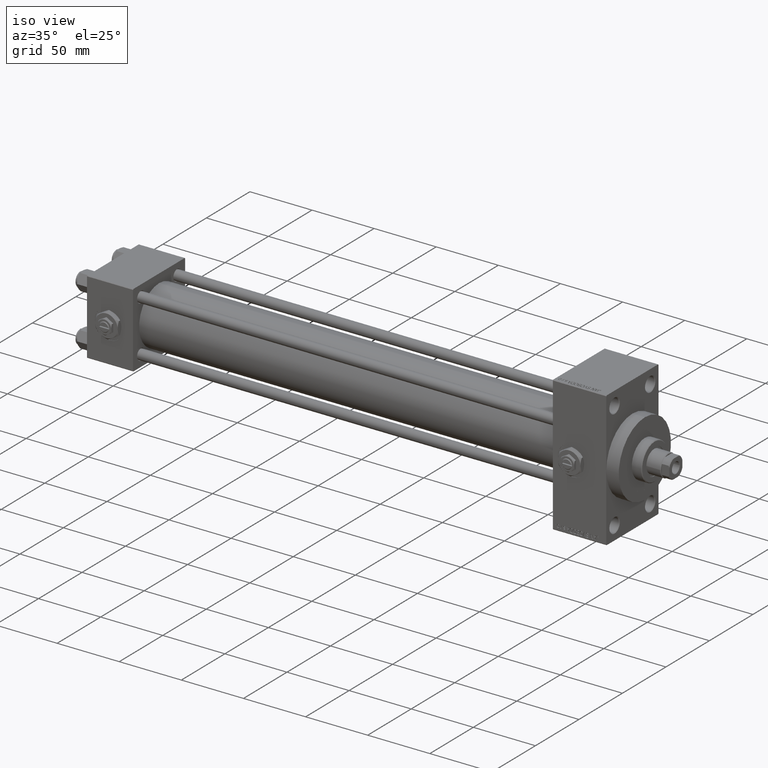
[diagram: clean part render]
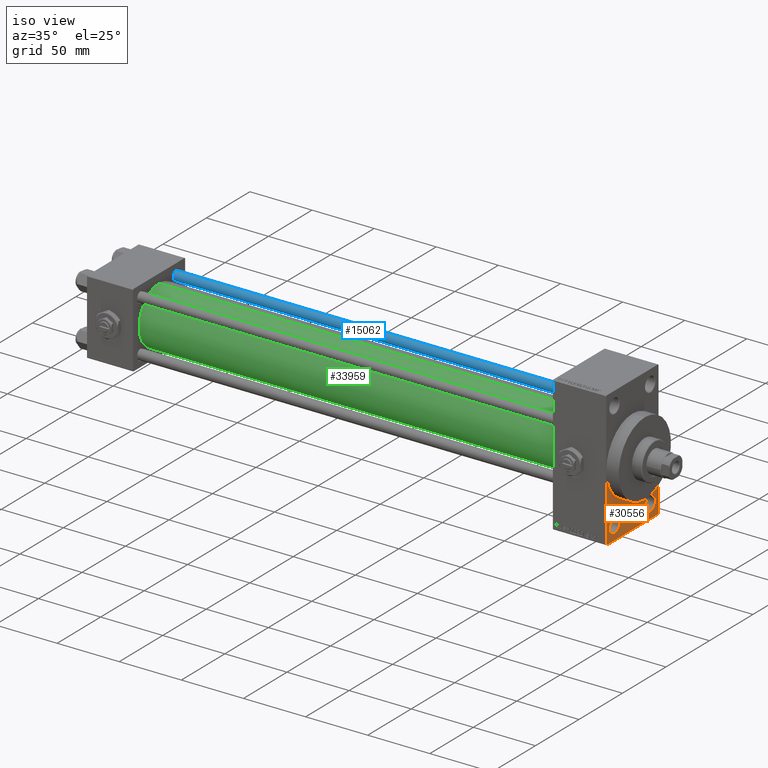
[diagram: same view with three faces highlighted in distinct colors, each labeled with its STEP entity id]
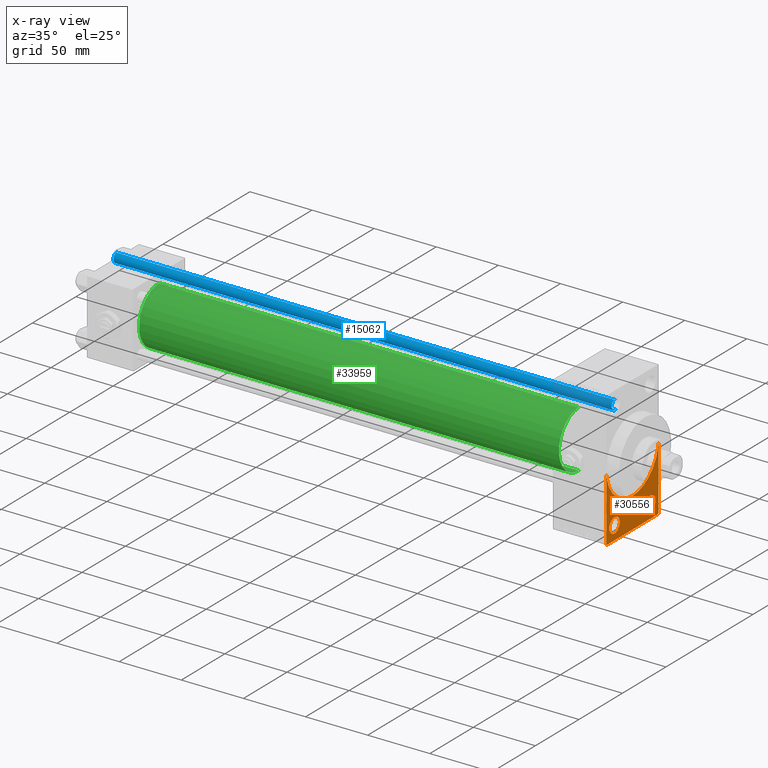
[diagram: x-ray of the same camera — body ghosted, the three highlighted faces saturated]
A machine part, iso view with three faces highlighted in distinct colors.
The next image is the same camera in x-ray (body ghosted, the three faces saturated) — at least one of them is partly hidden behind the body in this view.
Their STEP definitions:

[orange] entity #30556 — the highlighted planar face has unit normal (-1, 0, 0).
#319 = DIRECTION ( 'NONE',  ( 0.000000000000000000, 0.000000000000000000, -1.000000000000000000 ) ) ;
#781 = VECTOR ( 'NONE', #11737, 1000.000000000000114 ) ;
#1031 = EDGE_CURVE ( 'NONE', #13218, #46867, #19214, .T. ) ;
#1283 = DIRECTION ( 'NONE',  ( 0.000000000000000000, 0.000000000000000000, 1.000000000000000000 ) ) ;
#1867 = CARTESIAN_POINT ( 'NONE',  ( 418.0000000000000000, 20.50000000000000000, -43.50000000000000000 ) ) ;
#1924 = AXIS2_PLACEMENT_3D ( 'NONE', #17992, #48398, #14262 ) ;
#1964 = LINE ( 'NONE', #39072, #14049 ) ;
#2336 = DIRECTION ( 'NONE',  ( -1.000000000000000000, 0.000000000000000000, -0.000000000000000000 ) ) ;
#2926 = ORIENTED_EDGE ( 'NONE', *, *, #39020, .F. ) ;
#3690 = ORIENTED_EDGE ( 'NONE', *, *, #1031, .T. ) ;
#4043 = LINE ( 'NONE', #15504, #5162 ) ;
#4230 = VERTEX_POINT ( 'NONE', #45585 ) ;
#5162 = VECTOR ( 'NONE', #42140, 1000.000000000000000 ) ;
#5878 = VERTEX_POINT ( 'NONE', #7353 ) ;
#6168 = EDGE_LOOP ( 'NONE', ( #29302, #26811 ) ) ;
#7306 = VERTEX_POINT ( 'NONE', #46402 ) ;
#7353 = CARTESIAN_POINT ( 'NONE',  ( 418.0000000000000000, -29.49999999999994671, -54.50000000000000000 ) ) ;
#7792 = DIRECTION ( 'NONE',  ( 1.000000000000000000, 0.000000000000000000, 0.000000000000000000 ) ) ;
#7887 = ORIENTED_EDGE ( 'NONE', *, *, #43224, .F. ) ;
#8133 = DIRECTION ( 'NONE',  ( 0.000000000000000000, 0.000000000000000000, 1.000000000000000000 ) ) ;
#8819 = VERTEX_POINT ( 'NONE', #22965 ) ;
#8869 = DIRECTION ( 'NONE',  ( -1.000000000000000000, 0.000000000000000000, -0.000000000000000000 ) ) ;
#10185 = EDGE_CURVE ( 'NONE', #8819, #45784, #44739, .T. ) ;
#11007 = ORIENTED_EDGE ( 'NONE', *, *, #36548, .F. ) ;
#11121 = CARTESIAN_POINT ( 'NONE',  ( 418.0000000000000000, 0.000000000000000000, 0.000000000000000000 ) ) ;
#11737 = DIRECTION ( 'NONE',  ( -0.000000000000000000, 0.7071067811865474617, 0.7071067811865474617 ) ) ;
#12072 = VERTEX_POINT ( 'NONE', #43444 ) ;
#12830 = CARTESIAN_POINT ( 'NONE',  ( 418.0000000000000000, -30.00000000000000000, 0.000000000000000000 ) ) ;
#13218 = VERTEX_POINT ( 'NONE', #36433 ) ;
#14049 = VECTOR ( 'NONE', #24856, 1000.000000000000000 ) ;
#14262 = DIRECTION ( 'NONE',  ( 0.000000000000000000, 0.000000000000000000, -1.000000000000000000 ) ) ;
#15223 = ORIENTED_EDGE ( 'NONE', *, *, #21523, .T. ) ;
#15504 = CARTESIAN_POINT ( 'NONE',  ( 418.0000000000000000, 29.99999999999999645, -54.49999999999999289 ) ) ;
#17028 = EDGE_CURVE ( 'NONE', #12072, #5878, #42671, .T. ) ;
#17047 = DIRECTION ( 'NONE',  ( 0.000000000000000000, 0.000000000000000000, 1.000000000000000000 ) ) ;
#17049 = VERTEX_POINT ( 'NONE', #21461 ) ;
#17450 = CIRCLE ( 'NONE', #41320, 5.999999999999950262 ) ;
#17992 = CARTESIAN_POINT ( 'NONE',  ( 418.0000000000000000, 0.000000000000000000, 0.000000000000000000 ) ) ;
#19127 = CIRCLE ( 'NONE', #31851, 5.999999999999950262 ) ;
#19214 = LINE ( 'NONE', #26433, #781 ) ;
#19277 = AXIS2_PLACEMENT_3D ( 'NONE', #21633, #44558, #41303 ) ;
#19314 = CARTESIAN_POINT ( 'NONE',  ( 418.0000000000000000, 29.99999999999999645, -53.99999999999993605 ) ) ;
#19451 = CIRCLE ( 'NONE', #1924, 30.00000000000000000 ) ;
#19570 = VERTEX_POINT ( 'NONE', #31582 ) ;
#20498 = EDGE_LOOP ( 'NONE', ( #22599, #27604, #11007, #3690, #2926, #34525, #7887 ) ) ;
#20804 = VECTOR ( 'NONE', #33840, 1000.000000000000000 ) ;
#21461 = CARTESIAN_POINT ( 'NONE',  ( 418.0000000000000000, 20.50000000000000000, -49.49999999999995026 ) ) ;
#21523 = EDGE_CURVE ( 'NONE', #17049, #19570, #17450, .T. ) ;
#21633 = CARTESIAN_POINT ( 'NONE',  ( 418.0000000000000000, -20.50000000000000000, -43.50000000000000000 ) ) ;
#22185 = AXIS2_PLACEMENT_3D ( 'NONE', #30944, #7792, #319 ) ;
#22599 = ORIENTED_EDGE ( 'NONE', *, *, #26733, .T. ) ;
#22965 = CARTESIAN_POINT ( 'NONE',  ( 418.0000000000000000, -20.50000000000000000, -37.50000000000004974 ) ) ;
#23683 = VERTEX_POINT ( 'NONE', #12830 ) ;
#23728 = CARTESIAN_POINT ( 'NONE',  ( 418.0000000000000000, -29.49999999999994671, -54.50000000000000000 ) ) ;
#23741 = AXIS2_PLACEMENT_3D ( 'NONE', #24917, #46877, #1283 ) ;
#24856 = DIRECTION ( 'NONE',  ( 0.000000000000000000, 0.000000000000000000, -1.000000000000000000 ) ) ;
#24917 = CARTESIAN_POINT ( 'NONE',  ( 418.0000000000000000, -20.50000000000000000, -43.50000000000000000 ) ) ;
#26044 = DIRECTION ( 'NONE',  ( -1.000000000000000000, 0.000000000000000000, -0.000000000000000000 ) ) ;
#26297 = FACE_BOUND ( 'NONE', #6168, .T. ) ;
#26433 = CARTESIAN_POINT ( 'NONE',  ( 418.0000000000000000, 29.99999999999999645, -53.99999999999993605 ) ) ;
#26516 = AXIS2_PLACEMENT_3D ( 'NONE', #11121, #26044, #33532 ) ;
#26733 = EDGE_CURVE ( 'NONE', #23683, #12072, #41074, .T. ) ;
#26811 = ORIENTED_EDGE ( 'NONE', *, *, #10185, .T. ) ;
#27604 = ORIENTED_EDGE ( 'NONE', *, *, #17028, .T. ) ;
#29302 = ORIENTED_EDGE ( 'NONE', *, *, #42104, .T. ) ;
#29365 = VECTOR ( 'NONE', #38924, 1000.000000000000000 ) ;
#29554 = FACE_OUTER_BOUND ( 'NONE', #20498, .T. ) ;
#30556 = ADVANCED_FACE ( 'NONE', ( #26297, #33269, #29554 ), #45245, .F. ) ;
#30944 = CARTESIAN_POINT ( 'NONE',  ( 418.0000000000000000, 0.000000000000000000, 0.000000000000000000 ) ) ;
#31582 = CARTESIAN_POINT ( 'NONE',  ( 418.0000000000000000, 20.50000000000000000, -37.50000000000004974 ) ) ;
#31787 = CARTESIAN_POINT ( 'NONE',  ( 418.0000000000000000, -20.50000000000000000, -49.49999999999995026 ) ) ;
#31851 = AXIS2_PLACEMENT_3D ( 'NONE', #1867, #2336, #17047 ) ;
#33269 = FACE_BOUND ( 'NONE', #46100, .T. ) ;
#33343 = CARTESIAN_POINT ( 'NONE',  ( 418.0000000000000000, -30.00000000000000000, 54.50000000000000000 ) ) ;
#33532 = DIRECTION ( 'NONE',  ( -0.000000000000000000, 0.000000000000000000, 1.000000000000000000 ) ) ;
#33840 = DIRECTION ( 'NONE',  ( 0.000000000000000000, 0.000000000000000000, -1.000000000000000000 ) ) ;
#34525 = ORIENTED_EDGE ( 'NONE', *, *, #35491, .F. ) ;
#35491 = EDGE_CURVE ( 'NONE', #4230, #7306, #19451, .T. ) ;
#36433 = CARTESIAN_POINT ( 'NONE',  ( 418.0000000000000000, 29.49999999999993960, -54.49999999999999289 ) ) ;
#36548 = EDGE_CURVE ( 'NONE', #13218, #5878, #4043, .T. ) ;
#37292 = CIRCLE ( 'NONE', #22185, 30.00000000000000000 ) ;
#38924 = DIRECTION ( 'NONE',  ( 0.000000000000000000, 0.7071067811865352493, -0.7071067811865597852 ) ) ;
#39020 = EDGE_CURVE ( 'NONE', #7306, #46867, #1964, .T. ) ;
#39072 = CARTESIAN_POINT ( 'NONE',  ( 418.0000000000000000, 29.99999999999999645, 54.49999999999999289 ) ) ;
#41074 = LINE ( 'NONE', #33343, #20804 ) ;
#41303 = DIRECTION ( 'NONE',  ( 0.000000000000000000, 0.000000000000000000, 1.000000000000000000 ) ) ;
#41320 = AXIS2_PLACEMENT_3D ( 'NONE', #45985, #8869, #8133 ) ;
#42104 = EDGE_CURVE ( 'NONE', #45784, #8819, #44414, .T. ) ;
#42140 = DIRECTION ( 'NONE',  ( 0.000000000000000000, -1.000000000000000000, -1.156482317317871478E-16 ) ) ;
#42671 = LINE ( 'NONE', #23728, #29365 ) ;
#43224 = EDGE_CURVE ( 'NONE', #23683, #4230, #37292, .T. ) ;
#43444 = CARTESIAN_POINT ( 'NONE',  ( 418.0000000000000000, -30.00000000000000000, -53.99999999999992895 ) ) ;
#44414 = CIRCLE ( 'NONE', #23741, 5.999999999999950262 ) ;
#44558 = DIRECTION ( 'NONE',  ( -1.000000000000000000, 0.000000000000000000, -0.000000000000000000 ) ) ;
#44739 = CIRCLE ( 'NONE', #19277, 5.999999999999950262 ) ;
#45048 = ORIENTED_EDGE ( 'NONE', *, *, #47001, .T. ) ;
#45245 = PLANE ( 'NONE',  #26516 ) ;
#45585 = CARTESIAN_POINT ( 'NONE',  ( 418.0000000000000000, 3.673940397442059178E-15, -30.00000000000000000 ) ) ;
#45784 = VERTEX_POINT ( 'NONE', #31787 ) ;
#45985 = CARTESIAN_POINT ( 'NONE',  ( 418.0000000000000000, 20.50000000000000000, -43.50000000000000000 ) ) ;
#46100 = EDGE_LOOP ( 'NONE', ( #15223, #45048 ) ) ;
#46402 = CARTESIAN_POINT ( 'NONE',  ( 418.0000000000000000, 30.00000000000000000, 0.000000000000000000 ) ) ;
#46867 = VERTEX_POINT ( 'NONE', #19314 ) ;
#46877 = DIRECTION ( 'NONE',  ( -1.000000000000000000, 0.000000000000000000, -0.000000000000000000 ) ) ;
#47001 = EDGE_CURVE ( 'NONE', #19570, #17049, #19127, .T. ) ;
#48398 = DIRECTION ( 'NONE',  ( 1.000000000000000000, 0.000000000000000000, 0.000000000000000000 ) ) ;

[blue] entity #15062 — the highlighted cylindrical surface (edge-blend (fillet) strip) has radius 4 mm, axis along (-1, -0, 0).
#1514 = CIRCLE ( 'NONE', #47621, 4.000000000000000000 ) ;
#1726 = LINE ( 'NONE', #47784, #45452 ) ;
#2107 = CARTESIAN_POINT ( 'NONE',  ( 0.000000000000000000, 0.000000000000000000, 0.5000000000000004441 ) ) ;
#2847 = CARTESIAN_POINT ( 'NONE',  ( 0.000000000000000000, 0.000000000000000000, 401.5000000000000568 ) ) ;
#3749 = CYLINDRICAL_SURFACE ( 'NONE', #16575, 4.000000000000000000 ) ;
#3869 = ORIENTED_EDGE ( 'NONE', *, *, #15992, .T. ) ;
#4368 = EDGE_CURVE ( 'NONE', #45276, #15962, #1726, .T. ) ;
#6005 = CARTESIAN_POINT ( 'NONE',  ( 4.000000000000000000, 4.898587196589412829E-16, 401.5000000000000568 ) ) ;
#7113 = ORIENTED_EDGE ( 'NONE', *, *, #29803, .T. ) ;
#7303 = ORIENTED_EDGE ( 'NONE', *, *, #4368, .F. ) ;
#9064 = CARTESIAN_POINT ( 'NONE',  ( -4.000000000000000000, 0.000000000000000000, 0.5000000000000004441 ) ) ;
#12980 = EDGE_LOOP ( 'NONE', ( #7303, #3869, #7113, #26716 ) ) ;
#14365 = CARTESIAN_POINT ( 'NONE',  ( -4.000000000000000000, 0.000000000000000000, 401.5000000000000568 ) ) ;
#15062 = ADVANCED_FACE ( 'NONE', ( #38106 ), #3749, .T. ) ;
#15962 = VERTEX_POINT ( 'NONE', #28983 ) ;
#15992 = EDGE_CURVE ( 'NONE', #45276, #25203, #1514, .T. ) ;
#16034 = EDGE_CURVE ( 'NONE', #41693, #15962, #23745, .T. ) ;
#16575 = AXIS2_PLACEMENT_3D ( 'NONE', #27407, #42356, #18933 ) ;
#18933 = DIRECTION ( 'NONE',  ( -1.000000000000000000, 0.000000000000000000, 0.000000000000000000 ) ) ;
#22311 = CARTESIAN_POINT ( 'NONE',  ( -4.000000000000000000, 0.000000000000000000, 402.0000000000000000 ) ) ;
#23745 = CIRCLE ( 'NONE', #34099, 4.000000000000000000 ) ;
#25203 = VERTEX_POINT ( 'NONE', #14365 ) ;
#26716 = ORIENTED_EDGE ( 'NONE', *, *, #16034, .T. ) ;
#27407 = CARTESIAN_POINT ( 'NONE',  ( 0.000000000000000000, 0.000000000000000000, 402.0000000000000000 ) ) ;
#28983 = CARTESIAN_POINT ( 'NONE',  ( 4.000000000000000000, 4.898587196589412829E-16, 0.5000000000000004441 ) ) ;
#29732 = DIRECTION ( 'NONE',  ( 0.000000000000000000, 0.000000000000000000, -1.000000000000000000 ) ) ;
#29803 = EDGE_CURVE ( 'NONE', #25203, #41693, #30019, .T. ) ;
#30019 = LINE ( 'NONE', #22311, #44814 ) ;
#32958 = DIRECTION ( 'NONE',  ( -0.000000000000000000, -0.000000000000000000, 1.000000000000000000 ) ) ;
#33198 = DIRECTION ( 'NONE',  ( 1.000000000000000000, 0.000000000000000000, 0.000000000000000000 ) ) ;
#34099 = AXIS2_PLACEMENT_3D ( 'NONE', #2107, #32958, #48187 ) ;
#38106 = FACE_OUTER_BOUND ( 'NONE', #12980, .T. ) ;
#41693 = VERTEX_POINT ( 'NONE', #9064 ) ;
#41736 = DIRECTION ( 'NONE',  ( -0.000000000000000000, -0.000000000000000000, -1.000000000000000000 ) ) ;
#42356 = DIRECTION ( 'NONE',  ( -0.000000000000000000, -0.000000000000000000, -1.000000000000000000 ) ) ;
#44814 = VECTOR ( 'NONE', #41736, 1000.000000000000000 ) ;
#45276 = VERTEX_POINT ( 'NONE', #6005 ) ;
#45452 = VECTOR ( 'NONE', #48041, 1000.000000000000000 ) ;
#47621 = AXIS2_PLACEMENT_3D ( 'NONE', #2847, #29732, #33198 ) ;
#47784 = CARTESIAN_POINT ( 'NONE',  ( 4.000000000000000000, 4.898587196589412829E-16, 402.0000000000000000 ) ) ;
#48041 = DIRECTION ( 'NONE',  ( -0.000000000000000000, -0.000000000000000000, -1.000000000000000000 ) ) ;
#48187 = DIRECTION ( 'NONE',  ( 1.000000000000000000, 0.000000000000000000, 0.000000000000000000 ) ) ;

[green] entity #33959 — the highlighted cylindrical surface (edge-blend (fillet) strip) has radius 23 mm, axis along (-1, -0, -0).
#2703 = EDGE_CURVE ( 'NONE', #18213, #26029, #10421, .T. ) ;
#3805 = DIRECTION ( 'NONE',  ( 1.000000000000000000, -0.000000000000000000, 0.000000000000000000 ) ) ;
#3951 = CARTESIAN_POINT ( 'NONE',  ( 36.99999999999997868, 2.146024240737016609E-16, -23.00000000000000000 ) ) ;
#5411 = ORIENTED_EDGE ( 'NONE', *, *, #25445, .F. ) ;
#6561 = DIRECTION ( 'NONE',  ( -1.000000000000000000, -0.000000000000000000, -0.000000000000000000 ) ) ;
#7219 = VERTEX_POINT ( 'NONE', #38421 ) ;
#7552 = CARTESIAN_POINT ( 'NONE',  ( 36.99999999999997868, -2.602085213965210642E-15, 0.000000000000000000 ) ) ;
#8006 = CIRCLE ( 'NONE', #22328, 23.00000000000000000 ) ;
#10124 = CARTESIAN_POINT ( 'NONE',  ( 375.0000000000000000, 2.146024240737016609E-16, -23.00000000000000000 ) ) ;
#10421 = CIRCLE ( 'NONE', #35843, 23.00000000000000000 ) ;
#12195 = DIRECTION ( 'NONE',  ( 0.000000000000000000, 0.000000000000000000, 1.000000000000000000 ) ) ;
#12320 = DIRECTION ( 'NONE',  ( 0.000000000000000000, 0.000000000000000000, -1.000000000000000000 ) ) ;
#13588 = ORIENTED_EDGE ( 'NONE', *, *, #2703, .F. ) ;
#18213 = VERTEX_POINT ( 'NONE', #32132 ) ;
#18425 = VERTEX_POINT ( 'NONE', #3951 ) ;
#18561 = AXIS2_PLACEMENT_3D ( 'NONE', #18901, #23383, #12195 ) ;
#18901 = CARTESIAN_POINT ( 'NONE',  ( 375.0000000000000000, -2.602085213965210642E-15, 0.000000000000000000 ) ) ;
#22328 = AXIS2_PLACEMENT_3D ( 'NONE', #7552, #3805, #22736 ) ;
#22736 = DIRECTION ( 'NONE',  ( 0.000000000000000000, 0.000000000000000000, 1.000000000000000000 ) ) ;
#22882 = CYLINDRICAL_SURFACE ( 'NONE', #18561, 23.00000000000000000 ) ;
#23383 = DIRECTION ( 'NONE',  ( -1.000000000000000000, -0.000000000000000000, -0.000000000000000000 ) ) ;
#23881 = EDGE_CURVE ( 'NONE', #7219, #18425, #8006, .T. ) ;
#25445 = EDGE_CURVE ( 'NONE', #26029, #18425, #25462, .T. ) ;
#25462 = LINE ( 'NONE', #40674, #48627 ) ;
#26029 = VERTEX_POINT ( 'NONE', #10124 ) ;
#27607 = FACE_OUTER_BOUND ( 'NONE', #30096, .T. ) ;
#27993 = CARTESIAN_POINT ( 'NONE',  ( 375.0000000000000000, -2.602085213965210642E-15, 0.000000000000000000 ) ) ;
#30096 = EDGE_LOOP ( 'NONE', ( #5411, #13588, #39013, #37634 ) ) ;
#32132 = CARTESIAN_POINT ( 'NONE',  ( 375.0000000000000000, -2.602085213965210642E-15, 23.00000000000000000 ) ) ;
#33311 = LINE ( 'NONE', #48056, #43774 ) ;
#33959 = ADVANCED_FACE ( 'NONE', ( #27607 ), #22882, .T. ) ;
#35843 = AXIS2_PLACEMENT_3D ( 'NONE', #27993, #38939, #12320 ) ;
#36319 = DIRECTION ( 'NONE',  ( -1.000000000000000000, -0.000000000000000000, -0.000000000000000000 ) ) ;
#37634 = ORIENTED_EDGE ( 'NONE', *, *, #23881, .T. ) ;
#38421 = CARTESIAN_POINT ( 'NONE',  ( 36.99999999999997868, -2.602085213965210642E-15, 23.00000000000000000 ) ) ;
#38939 = DIRECTION ( 'NONE',  ( 1.000000000000000000, 0.000000000000000000, 0.000000000000000000 ) ) ;
#39013 = ORIENTED_EDGE ( 'NONE', *, *, #46369, .T. ) ;
#40674 = CARTESIAN_POINT ( 'NONE',  ( 375.0000000000000000, 2.146024240737016609E-16, -23.00000000000000000 ) ) ;
#43774 = VECTOR ( 'NONE', #36319, 1000.000000000000000 ) ;
#46369 = EDGE_CURVE ( 'NONE', #18213, #7219, #33311, .T. ) ;
#48056 = CARTESIAN_POINT ( 'NONE',  ( 375.0000000000000000, -2.602085213965210642E-15, 23.00000000000000000 ) ) ;
#48627 = VECTOR ( 'NONE', #6561, 1000.000000000000000 ) ;